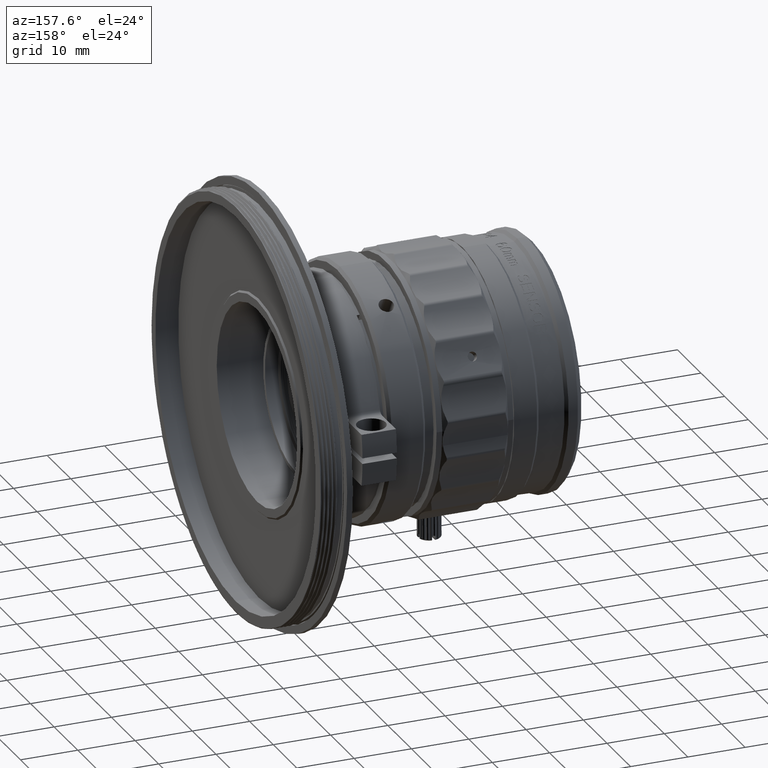
[diagram: clean part render]
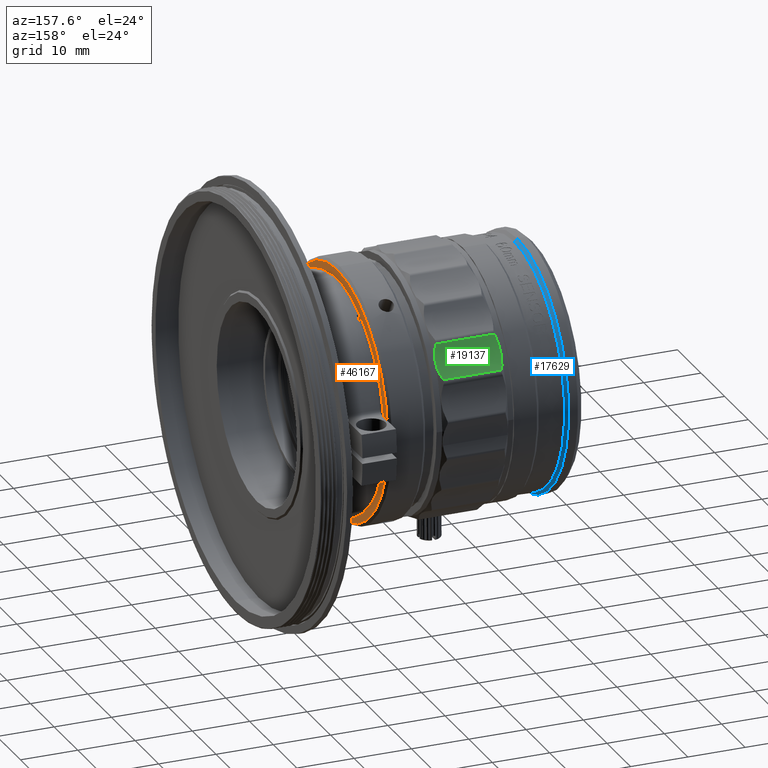
[diagram: same view with three faces highlighted in distinct colors, each labeled with its STEP entity id]
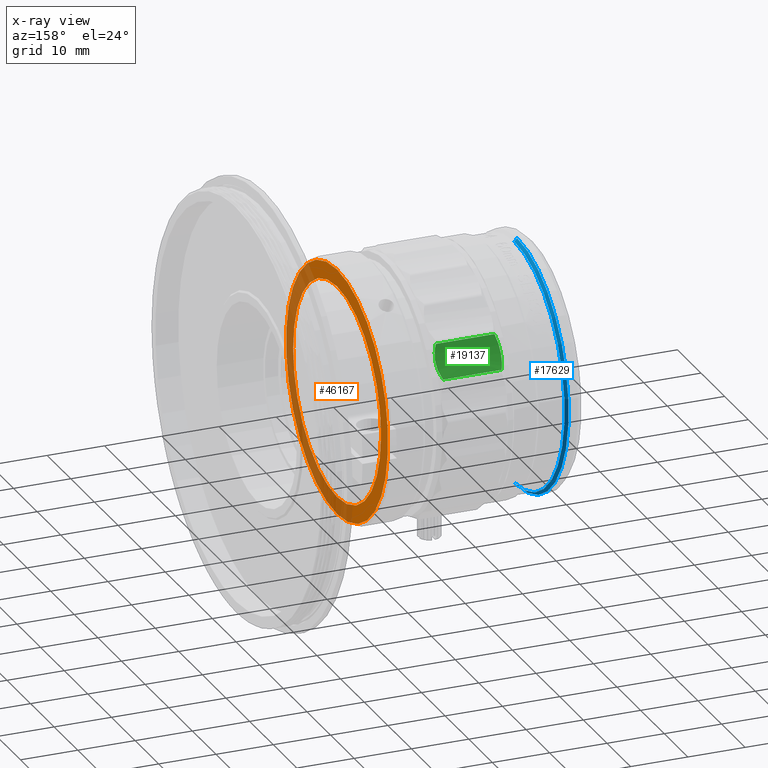
[diagram: x-ray of the same camera — body ghosted, the three highlighted faces saturated]
A machine part, auxiliary view with three faces highlighted in distinct colors.
The next image is the same camera in x-ray (body ghosted, the three faces saturated) — at least one of them is partly hidden behind the body in this view.
Their STEP definitions:

[orange] entity #46167 — the highlighted planar face has unit normal (1, 0, 0).
#755 = CARTESIAN_POINT ( 'NONE',  ( 35.63000000000000256, 0.0000000000000000000, 0.0000000000000000000 ) ) ;
#1450 = AXIS2_PLACEMENT_3D ( 'NONE', #23066, #18285, #17294 ) ;
#3261 = CIRCLE ( 'NONE', #6522, 18.60000000000000142 ) ;
#3772 = FACE_OUTER_BOUND ( 'NONE', #21021, .T. ) ;
#4448 = CARTESIAN_POINT ( 'NONE',  ( 35.63000000000253209, 0.0000000000000000000, 21.60000000000254161 ) ) ;
#6522 = AXIS2_PLACEMENT_3D ( 'NONE', #755, #47774, #31088 ) ;
#7377 = EDGE_CURVE ( 'NONE', #56026, #40244, #3261, .T. ) ;
#11723 = EDGE_CURVE ( 'NONE', #40244, #56026, #54740, .T. ) ;
#13410 = ORIENTED_EDGE ( 'NONE', *, *, #7377, .F. ) ;
#13744 = CARTESIAN_POINT ( 'NONE',  ( 35.63000000000000256, 2.277843046414077148E-15, 18.60000000000000142 ) ) ;
#13981 = DIRECTION ( 'NONE',  ( 0.0000000000000000000, 0.0000000000000000000, -1.000000000000000000 ) ) ;
#15995 = VERTEX_POINT ( 'NONE', #4448 ) ;
#17294 = DIRECTION ( 'NONE',  ( 0.0000000000000000000, 0.0000000000000000000, 1.000000000000000000 ) ) ;
#18285 = DIRECTION ( 'NONE',  ( -1.000000000000000000, 0.0000000000000000000, 0.0000000000000000000 ) ) ;
#18440 = DIRECTION ( 'NONE',  ( 0.0000000000000000000, 0.0000000000000000000, 1.000000000000000000 ) ) ;
#19458 = CARTESIAN_POINT ( 'NONE',  ( 35.63000000000253209, 0.0000000000000000000, 0.0000000000000000000 ) ) ;
#19949 = ORIENTED_EDGE ( 'NONE', *, *, #65923, .F. ) ;
#20754 = CARTESIAN_POINT ( 'NONE',  ( 35.63000000000253209, 2.675853256137423919E-15, -21.60000000000254161 ) ) ;
#21021 = EDGE_LOOP ( 'NONE', ( #38623, #19949 ) ) ;
#23066 = CARTESIAN_POINT ( 'NONE',  ( 35.63000000000253209, 0.0000000000000000000, 0.0000000000000000000 ) ) ;
#23345 = DIRECTION ( 'NONE',  ( 0.0000000000000000000, 0.0000000000000000000, -1.000000000000000000 ) ) ;
#24211 = CARTESIAN_POINT ( 'NONE',  ( 35.63000000000000256, 0.0000000000000000000, 0.0000000000000000000 ) ) ;
#27305 = AXIS2_PLACEMENT_3D ( 'NONE', #19458, #60677, #18440 ) ;
#29215 = ORIENTED_EDGE ( 'NONE', *, *, #11723, .F. ) ;
#29979 = FACE_BOUND ( 'NONE', #44087, .T. ) ;
#31088 = DIRECTION ( 'NONE',  ( 0.0000000000000000000, 0.0000000000000000000, -1.000000000000000000 ) ) ;
#34642 = AXIS2_PLACEMENT_3D ( 'NONE', #24211, #65415, #13981 ) ;
#35405 = EDGE_CURVE ( 'NONE', #15995, #48269, #39496, .T. ) ;
#37316 = AXIS2_PLACEMENT_3D ( 'NONE', #65907, #49576, #23345 ) ;
#38623 = ORIENTED_EDGE ( 'NONE', *, *, #35405, .F. ) ;
#39496 = CIRCLE ( 'NONE', #1450, 21.60000000000254161 ) ;
#40244 = VERTEX_POINT ( 'NONE', #57815 ) ;
#44087 = EDGE_LOOP ( 'NONE', ( #29215, #13410 ) ) ;
#46167 = ADVANCED_FACE ( 'NONE', ( #29979, #3772 ), #60993, .T. ) ;
#47774 = DIRECTION ( 'NONE',  ( 1.000000000000000000, 0.0000000000000000000, 0.0000000000000000000 ) ) ;
#48269 = VERTEX_POINT ( 'NONE', #20754 ) ;
#49576 = DIRECTION ( 'NONE',  ( 1.000000000000000000, 0.0000000000000000000, 0.0000000000000000000 ) ) ;
#54740 = CIRCLE ( 'NONE', #37316, 18.60000000000000142 ) ;
#56026 = VERTEX_POINT ( 'NONE', #13744 ) ;
#57815 = CARTESIAN_POINT ( 'NONE',  ( 35.63000000000000256, 0.0000000000000000000, -18.60000000000000142 ) ) ;
#60677 = DIRECTION ( 'NONE',  ( -1.000000000000000000, 0.0000000000000000000, 0.0000000000000000000 ) ) ;
#60993 = PLANE ( 'NONE',  #34642 ) ;
#62138 = CIRCLE ( 'NONE', #27305, 21.60000000000254161 ) ;
#65415 = DIRECTION ( 'NONE',  ( 1.000000000000000000, 0.0000000000000000000, 0.0000000000000000000 ) ) ;
#65907 = CARTESIAN_POINT ( 'NONE',  ( 35.63000000000000256, 0.0000000000000000000, 0.0000000000000000000 ) ) ;
#65923 = EDGE_CURVE ( 'NONE', #48269, #15995, #62138, .T. ) ;

[blue] entity #17629 — the highlighted conical surface has half-angle 45 deg.
#799 = AXIS2_PLACEMENT_3D ( 'NONE', #51562, #34292, #14776 ) ;
#1220 = VECTOR ( 'NONE', #63754, 1000.000000000000000 ) ;
#1916 = CIRCLE ( 'NONE', #799, 21.79999999999953886 ) ;
#5951 = DIRECTION ( 'NONE',  ( -0.7071067811866527109, 0.0000000000000000000, 0.7071067811864423236 ) ) ;
#6067 = DIRECTION ( 'NONE',  ( 1.000000000000000000, 0.0000000000000000000, 0.0000000000000000000 ) ) ;
#8440 = CARTESIAN_POINT ( 'NONE',  ( 4.700000000000000178, 2.639113852162527375E-15, -21.30000000000000071 ) ) ;
#9427 = EDGE_CURVE ( 'NONE', #21051, #41685, #37538, .T. ) ;
#10135 = ORIENTED_EDGE ( 'NONE', *, *, #9427, .T. ) ;
#11060 = LINE ( 'NONE', #31838, #21098 ) ;
#11812 = EDGE_CURVE ( 'NONE', #50848, #23770, #11060, .T. ) ;
#14776 = DIRECTION ( 'NONE',  ( 0.0000000000000000000, 0.0000000000000000000, -1.000000000000000000 ) ) ;
#15170 = DIRECTION ( 'NONE',  ( 0.0000000000000000000, 0.0000000000000000000, 1.000000000000000000 ) ) ;
#16518 = DIRECTION ( 'NONE',  ( -1.000000000000000000, 0.0000000000000000000, 0.0000000000000000000 ) ) ;
#17629 = ADVANCED_FACE ( 'NONE', ( #61839 ), #57213, .T. ) ;
#21051 = VERTEX_POINT ( 'NONE', #8440 ) ;
#21098 = VECTOR ( 'NONE', #5951, 1000.000000000000000 ) ;
#21857 = AXIS2_PLACEMENT_3D ( 'NONE', #37048, #6067, #50298 ) ;
#23770 = VERTEX_POINT ( 'NONE', #61950 ) ;
#23984 = EDGE_CURVE ( 'NONE', #41685, #23770, #1916, .T. ) ;
#26736 = CARTESIAN_POINT ( 'NONE',  ( 4.199999999999390887, 0.0000000000000000000, 1.491862189340054101E-13 ) ) ;
#31838 = CARTESIAN_POINT ( 'NONE',  ( 4.199999999999390887, 0.0000000000000000000, 21.79999999999968452 ) ) ;
#32753 = CIRCLE ( 'NONE', #21857, 21.30000000000000071 ) ;
#34057 = CARTESIAN_POINT ( 'NONE',  ( 4.700000000000000178, 0.0000000000000000000, 21.30000000000000071 ) ) ;
#34252 = CARTESIAN_POINT ( 'NONE',  ( 4.199999999999389999, 2.669730022141192624E-15, -21.79999999999938964 ) ) ;
#34280 = ORIENTED_EDGE ( 'NONE', *, *, #11812, .F. ) ;
#34292 = DIRECTION ( 'NONE',  ( 1.000000000000000000, -0.0000000000000000000, -0.0000000000000000000 ) ) ;
#37048 = CARTESIAN_POINT ( 'NONE',  ( 4.700000000000000178, 0.0000000000000000000, 0.0000000000000000000 ) ) ;
#37538 = LINE ( 'NONE', #48124, #1220 ) ;
#39005 = ORIENTED_EDGE ( 'NONE', *, *, #66600, .F. ) ;
#41685 = VERTEX_POINT ( 'NONE', #34252 ) ;
#41700 = ORIENTED_EDGE ( 'NONE', *, *, #23984, .T. ) ;
#45232 = AXIS2_PLACEMENT_3D ( 'NONE', #26736, #16518, #15170 ) ;
#48124 = CARTESIAN_POINT ( 'NONE',  ( 4.199999999999390887, 2.669730022141172903E-15, -21.79999999999938609 ) ) ;
#50298 = DIRECTION ( 'NONE',  ( 0.0000000000000000000, 0.0000000000000000000, -1.000000000000000000 ) ) ;
#50848 = VERTEX_POINT ( 'NONE', #34057 ) ;
#51562 = CARTESIAN_POINT ( 'NONE',  ( 4.199999999999389999, 0.0000000000000000000, 1.492139745096000112E-13 ) ) ;
#57213 = CONICAL_SURFACE ( 'NONE', #45232, 21.79999999999953531, 0.7853981633972995091 ) ;
#61839 = FACE_OUTER_BOUND ( 'NONE', #65503, .T. ) ;
#61950 = CARTESIAN_POINT ( 'NONE',  ( 4.199999999999389999, 0.0000000000000000000, 21.79999999999968807 ) ) ;
#63754 = DIRECTION ( 'NONE',  ( -0.7071067811866527109, 8.659560562353644796E-17, -0.7071067811864423236 ) ) ;
#65503 = EDGE_LOOP ( 'NONE', ( #39005, #10135, #41700, #34280 ) ) ;
#66600 = EDGE_CURVE ( 'NONE', #21051, #50848, #32753, .T. ) ;

[green] entity #19137 — the highlighted cylindrical surface (partial cylindrical patch) has radius 12 mm, axis along (1, 0, 0).
#896 = CARTESIAN_POINT ( 'NONE',  ( 19.74999999999921840, 18.34745103378367048, 11.95756750352170350 ) ) ;
#1224 = CARTESIAN_POINT ( 'NONE',  ( 19.85436967454210944, 19.17151330742958137, 10.58610063582584537 ) ) ;
#1860 = CARTESIAN_POINT ( 'NONE',  ( 25.80409018046329095, 20.23566322678822615, 9.251907425609916302 ) ) ;
#2869 = CARTESIAN_POINT ( 'NONE',  ( 26.12819496681861864, 19.29723713809079300, 10.40417000345535392 ) ) ;
#3872 = CARTESIAN_POINT ( 'NONE',  ( 15.28534472865570137, 20.40638373297923636, 9.082788999689196174 ) ) ;
#4215 = CARTESIAN_POINT ( 'NONE',  ( 14.80865164267436285, 18.99718537526080553, 10.82428275555427355 ) ) ;
#5021 = EDGE_LOOP ( 'NONE', ( #14911, #32481 ) ) ;
#6005 = CARTESIAN_POINT ( 'NONE',  ( 20.38910947288200148, 18.49147862781939722, 11.68521154283905439 ) ) ;
#7771 = B_SPLINE_CURVE_WITH_KNOTS ( 'NONE', 3,
 ( #65926, #45506, #66274, #61845, #50621, #45844, #19265, #19954, #36296, #15519, #46522, #57079, #40714, #9395 ),
 .UNSPECIFIED., .F., .F.,
 ( 4, 2, 2, 2, 2, 2, 4 ),
 ( 0.001251215262322634501, 0.001563881319137099815, 0.001876547375951565129, 0.002501879489580488385, 0.002814545546394950012, 0.003127211603209411640, 0.003752543716838338799 ),
 .UNSPECIFIED. ) ;
#8074 = EDGE_CURVE ( 'NONE', #43464, #61006, #7771, .T. ) ;
#8112 = CARTESIAN_POINT ( 'NONE',  ( 25.62505781952567929, 17.53053377839211890, 13.98422029439845637 ) ) ;
#8310 = CARTESIAN_POINT ( 'NONE',  ( 26.19134835732236155, 18.47590454765582990, 11.69183905551801317 ) ) ;
#9314 = CARTESIAN_POINT ( 'NONE',  ( 15.19590981953547626, 17.66900838867770318, 13.52353503345040231 ) ) ;
#9395 = CARTESIAN_POINT ( 'NONE',  ( 19.75000000000078160, 19.17151330743540782, 10.58610063581746985 ) ) ;
#9992 = CARTESIAN_POINT ( 'NONE',  ( 15.00398679812681557, 19.74969488641491111, 9.817770265471539304 ) ) ;
#11440 = CARTESIAN_POINT ( 'NONE',  ( 20.15291418680882884, 19.11403780591324519, 10.66935646021865303 ) ) ;
#12951 = EDGE_CURVE ( 'NONE', #48242, #44966, #43012, .T. ) ;
#13412 = CARTESIAN_POINT ( 'NONE',  ( 25.62505781952723893, 20.57741451366021579, 8.913363210963010985 ) ) ;
#14911 = ORIENTED_EDGE ( 'NONE', *, *, #8074, .T. ) ;
#15086 = CARTESIAN_POINT ( 'NONE',  ( 14.80878744215754850, 18.60523211080469963, 11.47677223674902081 ) ) ;
#15519 = CARTESIAN_POINT ( 'NONE',  ( 19.05140297113366188, 18.94999515605483609, 10.91536165377925904 ) ) ;
#16217 = CARTESIAN_POINT ( 'NONE',  ( 19.95921613671195161, 19.15959045774273761, 10.60315472613461907 ) ) ;
#16641 = B_SPLINE_CURVE_WITH_KNOTS ( 'NONE', 3,
 ( #57115, #1224, #16217, #11440, #42762, #32213, #31891, #20668, #41766, #37644, #6005, #31558, #36656, #896 ),
 .UNSPECIFIED., .F., .F.,
 ( 4, 2, 2, 2, 2, 2, 4 ),
 ( 0.003752543716838338799, 0.004065209773282995979, 0.004377875829727653594, 0.005003207942616964485, 0.005315873999061622966, 0.005628540055506281448, 0.006253872168395593206 ),
 .UNSPECIFIED. ) ;
#17376 = ORIENTED_EDGE ( 'NONE', *, *, #21641, .F. ) ;
#18525 = CARTESIAN_POINT ( 'NONE',  ( 26.14162976200721644, 18.24437061968474794, 12.13929721097792225 ) ) ;
#19137 = ADVANCED_FACE ( 'NONE', ( #64848, #50224 ), #24333, .F. ) ;
#19265 = CARTESIAN_POINT ( 'NONE',  ( 18.94985210813765875, 18.62798736858352910, 11.43882485974407004 ) ) ;
#19954 = CARTESIAN_POINT ( 'NONE',  ( 18.95007424029331844, 18.79133761423726057, 11.16699375676654604 ) ) ;
#20137 = EDGE_CURVE ( 'NONE', #61006, #43464, #16641, .T. ) ;
#20668 = CARTESIAN_POINT ( 'NONE',  ( 20.54992594502100189, 18.68186934789529374, 11.34917911597210072 ) ) ;
#21641 = EDGE_CURVE ( 'NONE', #40119, #48242, #43887, .T. ) ;
#21914 = B_SPLINE_CURVE_WITH_KNOTS ( 'NONE', 3,
 ( #13412, #1860, #49202, #23975, #2869, #54302, #65183, #8310, #18525, #38950, #32860, #28071, #63832, #59751 ),
 .UNSPECIFIED., .F., .F.,
 ( 4, 2, 2, 2, 2, 2, 4 ),
 ( 3.435278115994800564E-16, 0.001520765295293255871, 0.002281147942939715321, 0.003041530590586175205, 0.004562295885879088901, 0.005322678533525545749, 0.006083061181172002597 ),
 .UNSPECIFIED. ) ;
#22905 = EDGE_CURVE ( 'NONE', #58409, #40119, #21914, .T. ) ;
#23975 = CARTESIAN_POINT ( 'NONE',  ( 26.09082508843286874, 19.44712950910228244, 10.20167550771155796 ) ) ;
#24333 = CYLINDRICAL_SURFACE ( 'NONE', #44146, 12.00000000000000355 ) ;
#24660 = DIRECTION ( 'NONE',  ( 1.000000000000000000, 0.0000000000000000000, 0.0000000000000000000 ) ) ;
#24752 = VECTOR ( 'NONE', #67179, 1000.000000000000000 ) ;
#28071 = CARTESIAN_POINT ( 'NONE',  ( 25.79507245419094019, 17.67673030441004656, 13.52296699462566210 ) ) ;
#30077 = CARTESIAN_POINT ( 'NONE',  ( 14.90917491156495700, 18.13741047114422145, 12.38141230674849247 ) ) ;
#30754 = CARTESIAN_POINT ( 'NONE',  ( 15.06435222680804209, 19.91080038769613836, 9.626018536038445816 ) ) ;
#31558 = CARTESIAN_POINT ( 'NONE',  ( 20.16763393313651775, 18.38652454622350874, 11.88016347929250749 ) ) ;
#31891 = CARTESIAN_POINT ( 'NONE',  ( 20.55014752416300539, 18.84519446158142131, 11.07733240551796250 ) ) ;
#32213 = CARTESIAN_POINT ( 'NONE',  ( 20.46503510562509831, 18.95642364309336969, 10.90445315721932396 ) ) ;
#32481 = ORIENTED_EDGE ( 'NONE', *, *, #20137, .T. ) ;
#32860 = CARTESIAN_POINT ( 'NONE',  ( 25.93564777318813697, 17.84681535119936058, 13.06106376812653735 ) ) ;
#36212 = CARTESIAN_POINT ( 'NONE',  ( 15.20492754580516070, 20.23878689317761115, 9.258992152771552853 ) ) ;
#36296 = CARTESIAN_POINT ( 'NONE',  ( 18.97097023266078608, 18.84600507903060773, 11.07881173958568333 ) ) ;
#36656 = CARTESIAN_POINT ( 'NONE',  ( 19.95873957394488230, 18.34745103378810072, 11.95756750351309350 ) ) ;
#37644 = CARTESIAN_POINT ( 'NONE',  ( 20.44859750281917954, 18.53417583705650173, 11.60739961600566517 ) ) ;
#38950 = CARTESIAN_POINT ( 'NONE',  ( 25.99601320186943099, 17.94048778982365988, 12.82879413488587339 ) ) ;
#40119 = VERTEX_POINT ( 'NONE', #8112 ) ;
#40714 = CARTESIAN_POINT ( 'NONE',  ( 19.54126065067286788, 19.17151330742988691, 10.58610063582542260 ) ) ;
#41010 = EDGE_CURVE ( 'NONE', #44966, #58409, #61068, .T. ) ;
#41313 = CARTESIAN_POINT ( 'NONE',  ( 15.05462356068265883, 17.83675608362749898, 13.06534275169790327 ) ) ;
#41766 = CARTESIAN_POINT ( 'NONE',  ( 20.52903009092042197, 18.62967382533213012, 11.43884656198319227 ) ) ;
#42017 = VECTOR ( 'NONE', #59563, 1000.000000000000000 ) ;
#42762 = CARTESIAN_POINT ( 'NONE',  ( 20.24100059194877588, 19.08087000814353473, 10.71786808720558426 ) ) ;
#43012 = B_SPLINE_CURVE_WITH_KNOTS ( 'NONE', 3,
 ( #55651, #9314, #41313, #30077, #51205, #50534, #15086, #4215, #61754, #9992, #30754, #36212, #3872, #51541 ),
 .UNSPECIFIED., .F., .F.,
 ( 4, 2, 2, 2, 2, 2, 4 ),
 ( 3.705858218584467752E-16, 0.001520765295294132556, 0.002281147942941018098, 0.003041530590587903423, 0.004562295885881673639, 0.005322678533528559831, 0.006083061181175445156 ),
 .UNSPECIFIED. ) ;
#43464 = VERTEX_POINT ( 'NONE', #65032 ) ;
#43887 = LINE ( 'NONE', #64658, #42017 ) ;
#43940 = CARTESIAN_POINT ( 'NONE',  ( 25.62505781952723893, 20.57741451366021579, 8.913363210963010985 ) ) ;
#44146 = AXIS2_PLACEMENT_3D ( 'NONE', #60774, #24660, #49211 ) ;
#44966 = VERTEX_POINT ( 'NONE', #57453 ) ;
#45133 = ORIENTED_EDGE ( 'NONE', *, *, #22905, .F. ) ;
#45506 = CARTESIAN_POINT ( 'NONE',  ( 19.64563021290214451, 18.34745103378832809, 11.95756750351262987 ) ) ;
#45844 = CARTESIAN_POINT ( 'NONE',  ( 19.03496434583010810, 18.52756218415153100, 11.61819682919905539 ) ) ;
#46000 = ORIENTED_EDGE ( 'NONE', *, *, #12951, .F. ) ;
#46522 = CARTESIAN_POINT ( 'NONE',  ( 19.11089103409598167, 18.99865395411810098, 10.84113199010074169 ) ) ;
#46651 = CARTESIAN_POINT ( 'NONE',  ( 15.37494218047179650, 17.53053377839175653, 13.98422029439967673 ) ) ;
#48242 = VERTEX_POINT ( 'NONE', #46651 ) ;
#49202 = CARTESIAN_POINT ( 'NONE',  ( 25.94537643931572291, 19.90985597347460612, 9.615127868187926197 ) ) ;
#49211 = DIRECTION ( 'NONE',  ( 0.0000000000000000000, -0.9998476951563911586, -0.01745240643728975666 ) ) ;
#50224 = FACE_OUTER_BOUND ( 'NONE', #63791, .T. ) ;
#50534 = CARTESIAN_POINT ( 'NONE',  ( 14.82140164831281659, 18.48040657593501024, 11.70031459242805560 ) ) ;
#50621 = CARTESIAN_POINT ( 'NONE',  ( 19.25899894836295090, 18.42124076171722535, 11.81567301925159086 ) ) ;
#51205 = CARTESIAN_POINT ( 'NONE',  ( 14.87180503317902591, 18.24583245182378377, 12.15399986689623013 ) ) ;
#51541 = CARTESIAN_POINT ( 'NONE',  ( 15.37494218047048200, 20.57741451366158358, 8.913363210961659178 ) ) ;
#54302 = CARTESIAN_POINT ( 'NONE',  ( 26.17859835168449578, 19.00678240442815792, 10.82427879372819390 ) ) ;
#55651 = CARTESIAN_POINT ( 'NONE',  ( 15.37494218047179650, 17.53053377839175653, 13.98422029439967673 ) ) ;
#56295 = CARTESIAN_POINT ( 'NONE',  ( 30.75000000000000000, 20.57741451366213781, 8.913363210963479943 ) ) ;
#57079 = CARTESIAN_POINT ( 'NONE',  ( 19.33236650474558971, 19.12151347436480719, 10.65693924824660321 ) ) ;
#57115 = CARTESIAN_POINT ( 'NONE',  ( 19.75000000000078160, 19.17151330743540782, 10.58610063581746985 ) ) ;
#57453 = CARTESIAN_POINT ( 'NONE',  ( 15.37494218047048200, 20.57741451366158358, 8.913363210961659178 ) ) ;
#58409 = VERTEX_POINT ( 'NONE', #43940 ) ;
#59436 = ORIENTED_EDGE ( 'NONE', *, *, #41010, .F. ) ;
#59563 = DIRECTION ( 'NONE',  ( -1.000000000000000000, -0.0000000000000000000, -0.0000000000000000000 ) ) ;
#59751 = CARTESIAN_POINT ( 'NONE',  ( 25.62505781952567929, 17.53053377839211890, 13.98422029439845637 ) ) ;
#60774 = CARTESIAN_POINT ( 'NONE',  ( 30.75000000000000000, 29.02260044299811526, 17.43855145633059323 ) ) ;
#61006 = VERTEX_POINT ( 'NONE', #65611 ) ;
#61068 = LINE ( 'NONE', #56295, #24752 ) ;
#61754 = CARTESIAN_POINT ( 'NONE',  ( 14.85837023798926637, 19.28356917090313161, 10.40978175159516717 ) ) ;
#61845 = CARTESIAN_POINT ( 'NONE',  ( 19.34708540623747552, 18.39397872201028150, 11.86773331649162166 ) ) ;
#63791 = EDGE_LOOP ( 'NONE', ( #45133, #59436, #46000, #17376 ) ) ;
#63832 = CARTESIAN_POINT ( 'NONE',  ( 25.71465527134084539, 17.59983394378189558, 13.75366853685943802 ) ) ;
#64658 = CARTESIAN_POINT ( 'NONE',  ( 30.75000000000000000, 17.53053377839373894, 13.98422029439941916 ) ) ;
#64848 = FACE_BOUND ( 'NONE', #5021, .T. ) ;
#65032 = CARTESIAN_POINT ( 'NONE',  ( 19.74999999999921840, 18.34745103378367048, 11.95756750352170350 ) ) ;
#65183 = CARTESIAN_POINT ( 'NONE',  ( 26.19121255783960933, 18.86800810829951303, 11.03943988145544530 ) ) ;
#65611 = CARTESIAN_POINT ( 'NONE',  ( 19.75000000000078160, 19.17151330743540782, 10.58610063581746985 ) ) ;
#65926 = CARTESIAN_POINT ( 'NONE',  ( 19.74999999999921840, 18.34745103378367048, 11.95756750352170350 ) ) ;
#66274 = CARTESIAN_POINT ( 'NONE',  ( 19.54078364299540382, 18.35691151773537655, 11.93903382434313620 ) ) ;
#67179 = DIRECTION ( 'NONE',  ( 1.000000000000000000, 0.0000000000000000000, 0.0000000000000000000 ) ) ;